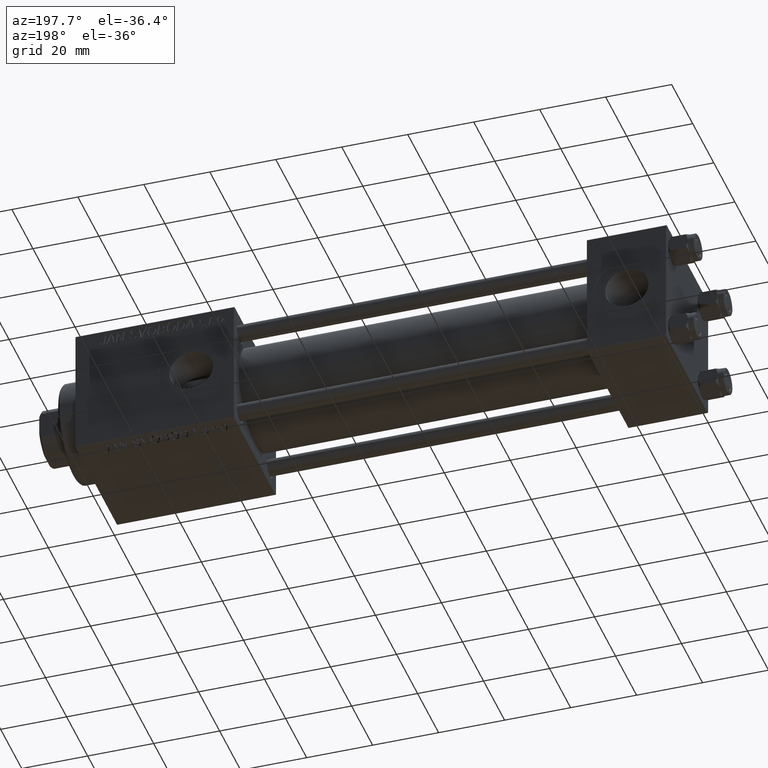
[diagram: clean part render]
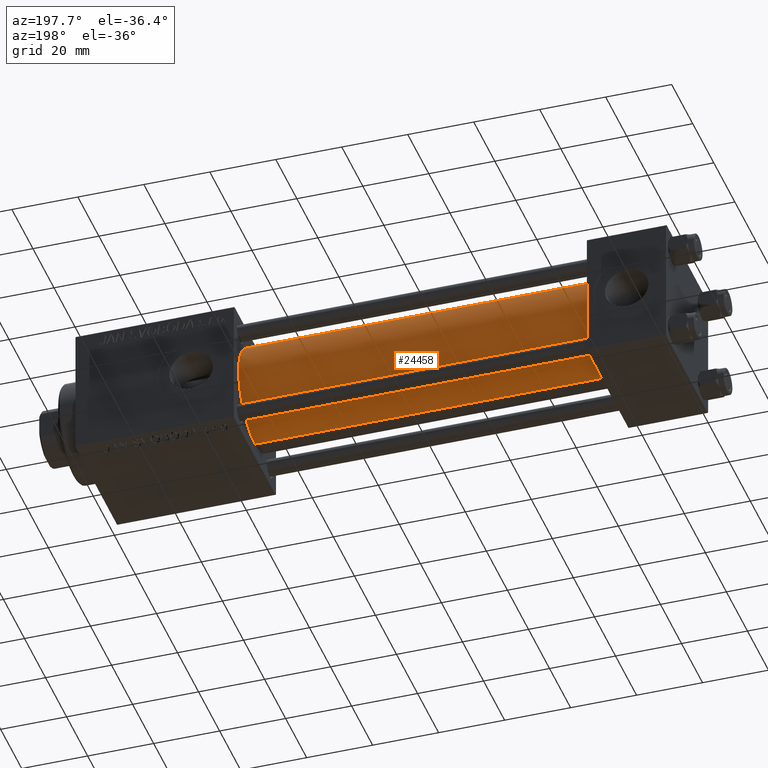
[diagram: same view with one face highlighted and labeled with its STEP entity id]
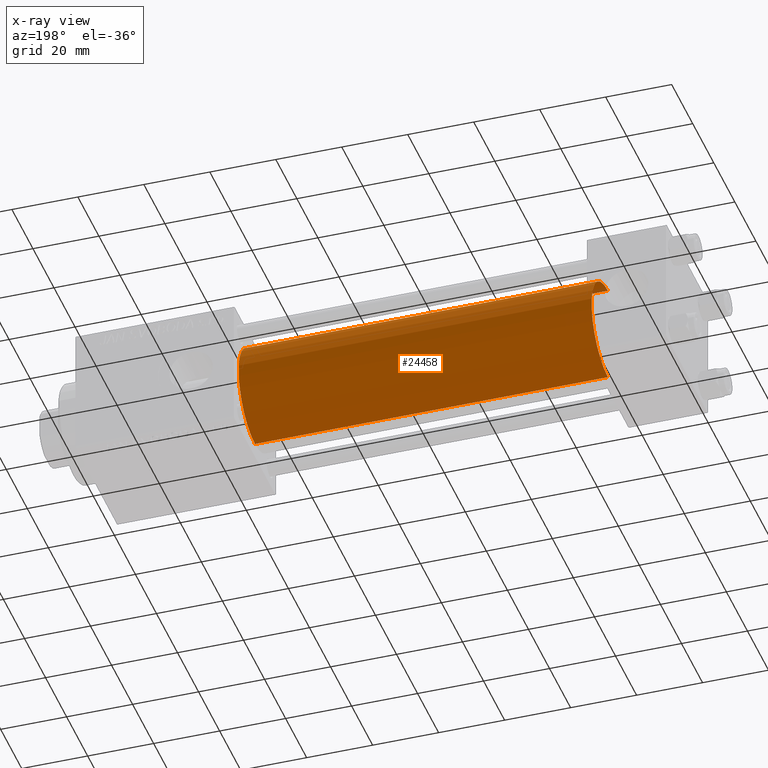
[diagram: x-ray of the same camera — body ghosted, the highlighted face saturated]
A machine part, auxiliary view. The second image highlights one B-rep face of the part: STEP entity #24458.
The next image is the same camera in x-ray: the body ghosted, the highlighted face saturated — about 0% of this face is hidden behind the body in this view.
In plain terms, the highlighted cylindrical surface (partial cylindrical patch) has radius 15.5 mm, axis along (-1, -0, -0).
Its self-contained STEP definition (entity closure, byte-faithful):
#3781 = EDGE_CURVE ( 'NONE', #39765, #43004, #7572, .T. ) ;
#3848 = DIRECTION ( 'NONE',  ( 1.000000000000000000, 0.000000000000000000, 0.000000000000000000 ) ) ;
#4130 = CARTESIAN_POINT ( 'NONE',  ( 23.99999999999999289, -7.038826752868131828E-16, -15.50000000000000000 ) ) ;
#5710 = DIRECTION ( 'NONE',  ( -1.000000000000000000, -0.000000000000000000, -0.000000000000000000 ) ) ;
#6035 = AXIS2_PLACEMENT_3D ( 'NONE', #40059, #3848, #7018 ) ;
#6419 = CARTESIAN_POINT ( 'NONE',  ( 23.99999999999999289, -2.602085213965210642E-15, 15.50000000000000000 ) ) ;
#6550 = DIRECTION ( 'NONE',  ( -1.000000000000000000, -0.000000000000000000, -0.000000000000000000 ) ) ;
#7018 = DIRECTION ( 'NONE',  ( 0.000000000000000000, 0.000000000000000000, -1.000000000000000000 ) ) ;
#7572 = CIRCLE ( 'NONE', #23604, 15.50000000000000000 ) ;
#8154 = VECTOR ( 'NONE', #5710, 1000.000000000000000 ) ;
#9186 = EDGE_CURVE ( 'NONE', #22460, #31987, #28833, .T. ) ;
#14602 = AXIS2_PLACEMENT_3D ( 'NONE', #25458, #38154, #46302 ) ;
#19875 = EDGE_CURVE ( 'NONE', #22460, #39765, #33492, .T. ) ;
#20548 = ORIENTED_EDGE ( 'NONE', *, *, #3781, .T. ) ;
#21465 = EDGE_LOOP ( 'NONE', ( #28591, #49594, #20548, #45516 ) ) ;
#22018 = CYLINDRICAL_SURFACE ( 'NONE', #14602, 15.50000000000000000 ) ;
#22200 = CARTESIAN_POINT ( 'NONE',  ( 131.0000000000000000, -7.038826752868131828E-16, -15.50000000000000000 ) ) ;
#22460 = VERTEX_POINT ( 'NONE', #22200 ) ;
#22935 = CARTESIAN_POINT ( 'NONE',  ( 131.0000000000000000, -2.602085213965210642E-15, 15.50000000000000000 ) ) ;
#23604 = AXIS2_PLACEMENT_3D ( 'NONE', #45419, #41474, #30108 ) ;
#24458 = ADVANCED_FACE ( 'NONE', ( #34463 ), #22018, .T. ) ;
#25171 = VECTOR ( 'NONE', #6550, 1000.000000000000000 ) ;
#25458 = CARTESIAN_POINT ( 'NONE',  ( 131.0000000000000000, -2.602085213965210642E-15, 0.000000000000000000 ) ) ;
#26631 = LINE ( 'NONE', #22935, #25171 ) ;
#28591 = ORIENTED_EDGE ( 'NONE', *, *, #9186, .F. ) ;
#28833 = CIRCLE ( 'NONE', #6035, 15.50000000000000000 ) ;
#30108 = DIRECTION ( 'NONE',  ( 0.000000000000000000, 0.000000000000000000, 1.000000000000000000 ) ) ;
#31987 = VERTEX_POINT ( 'NONE', #43271 ) ;
#33492 = LINE ( 'NONE', #41141, #8154 ) ;
#34463 = FACE_OUTER_BOUND ( 'NONE', #21465, .T. ) ;
#38154 = DIRECTION ( 'NONE',  ( -1.000000000000000000, -0.000000000000000000, -0.000000000000000000 ) ) ;
#39765 = VERTEX_POINT ( 'NONE', #4130 ) ;
#40059 = CARTESIAN_POINT ( 'NONE',  ( 131.0000000000000000, -2.602085213965210642E-15, 0.000000000000000000 ) ) ;
#41141 = CARTESIAN_POINT ( 'NONE',  ( 131.0000000000000000, -7.038826752868131828E-16, -15.50000000000000000 ) ) ;
#41474 = DIRECTION ( 'NONE',  ( 1.000000000000000000, 0.000000000000000000, 0.000000000000000000 ) ) ;
#42297 = EDGE_CURVE ( 'NONE', #31987, #43004, #26631, .T. ) ;
#43004 = VERTEX_POINT ( 'NONE', #6419 ) ;
#43271 = CARTESIAN_POINT ( 'NONE',  ( 131.0000000000000000, -2.602085213965210642E-15, 15.50000000000000000 ) ) ;
#45419 = CARTESIAN_POINT ( 'NONE',  ( 23.99999999999999289, -2.602085213965210642E-15, 0.000000000000000000 ) ) ;
#45516 = ORIENTED_EDGE ( 'NONE', *, *, #42297, .F. ) ;
#46302 = DIRECTION ( 'NONE',  ( 0.000000000000000000, 0.000000000000000000, 1.000000000000000000 ) ) ;
#49594 = ORIENTED_EDGE ( 'NONE', *, *, #19875, .T. ) ;